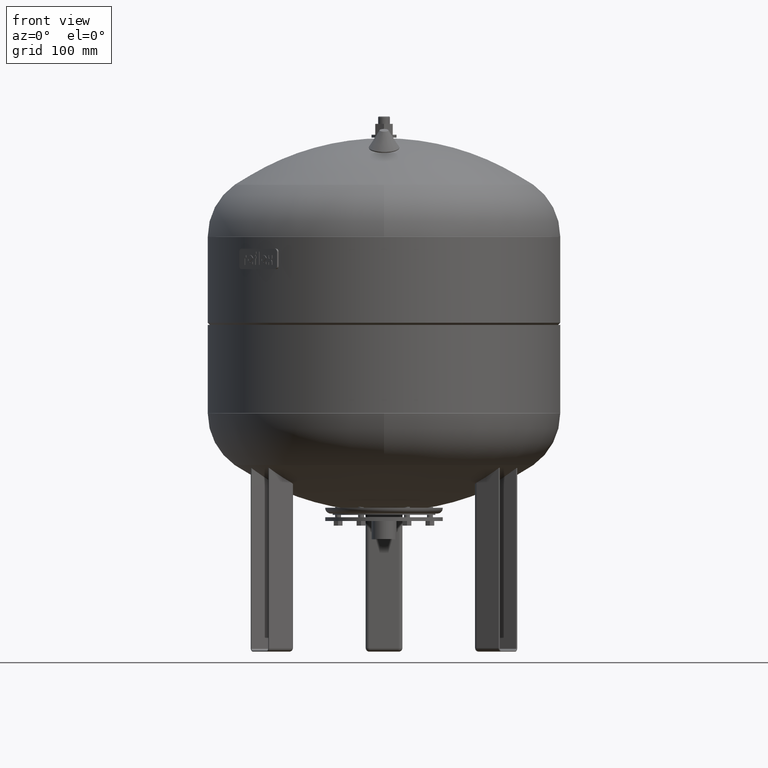
[diagram: clean part render]
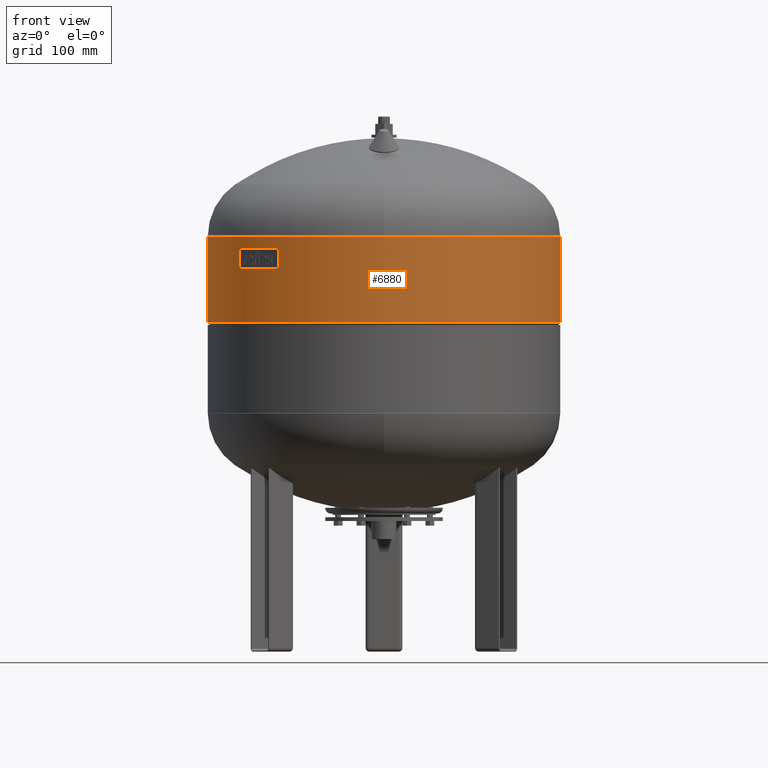
[diagram: same view with one face highlighted and labeled with its STEP entity id]
A machine part, front view. The second image highlights one B-rep face of the part: STEP entity #6880.
In plain terms, the highlighted cylindrical surface (partial cylindrical patch) has radius 240 mm, axis along (0, 0, -1).
Its self-contained STEP definition (entity closure, byte-faithful):
#6780=CARTESIAN_POINT('',(240.0,-5.510911E-016,448.0));
#6781=VERTEX_POINT('',#6780);
#6797=CARTESIAN_POINT('',(-240.0,2.883946E-014,448.0));
#6798=VERTEX_POINT('',#6797);
#6820=CARTESIAN_POINT('',(240.0,-2.204364E-014,565.0));
#6821=VERTEX_POINT('',#6820);
#6822=CARTESIAN_POINT('',(240.0,-5.510911E-016,448.0));
#6823=DIRECTION('',(0.0,0.0,1.0));
#6824=VECTOR('',#6823,117.0);
#6825=LINE('',#6822,#6824);
#6826=EDGE_CURVE('',#6781,#6821,#6825,.T.);
#6829=CARTESIAN_POINT('',(-240.0,7.346910E-015,565.0));
#6830=VERTEX_POINT('',#6829);
#6831=CARTESIAN_POINT('',(-240.0,2.883946E-014,448.0));
#6832=DIRECTION('',(0.0,0.0,1.0));
#6833=VECTOR('',#6832,117.0);
#6834=LINE('',#6831,#6833);
#6835=EDGE_CURVE('',#6798,#6830,#6834,.T.);
#6852=CARTESIAN_POINT('',(-1.469576E-014,-2.204364E-014,565.0));
#6853=DIRECTION('',(0.0,0.0,-1.0));
#6854=DIRECTION('',(1.0,0.0,0.0));
#6855=AXIS2_PLACEMENT_3D('',#6852,#6853,#6854);
#6856=CIRCLE('',#6855,240.0);
#6857=EDGE_CURVE('',#6821,#6830,#6856,.T.);
#6863=CARTESIAN_POINT('',(-7.531578E-015,-1.129737E-014,506.500000000000000));
#6864=DIRECTION('',(1.224647E-016,1.836970E-016,-1.0));
#6865=DIRECTION('',(1.0,0.0,0.0));
#6866=AXIS2_PLACEMENT_3D('',#6863,#6864,#6865);
#6867=CYLINDRICAL_SURFACE('',#6866,240.0);
#6868=ORIENTED_EDGE('',*,*,#6826,.T.);
#6869=ORIENTED_EDGE('',*,*,#6857,.T.);
#6870=ORIENTED_EDGE('',*,*,#6835,.F.);
#6871=CARTESIAN_POINT('',(-3.673940E-016,-5.510911E-016,448.0));
#6872=DIRECTION('',(0.0,0.0,-1.0));
#6873=DIRECTION('',(1.0,0.0,0.0));
#6874=AXIS2_PLACEMENT_3D('',#6871,#6872,#6873);
#6875=CIRCLE('',#6874,240.0);
#6876=EDGE_CURVE('',#6781,#6798,#6875,.T.);
#6877=ORIENTED_EDGE('',*,*,#6876,.F.);
#6878=EDGE_LOOP('',(#6868,#6869,#6870,#6877));
#6879=FACE_OUTER_BOUND('',#6878,.T.);
#6880=ADVANCED_FACE('',(#6879),#6867,.T.);